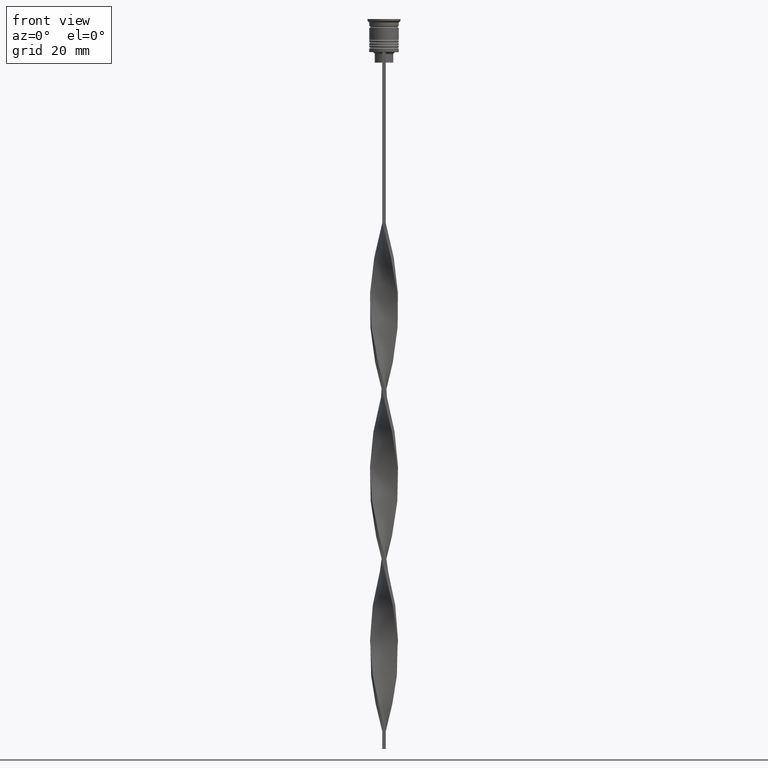
[diagram: clean part render]
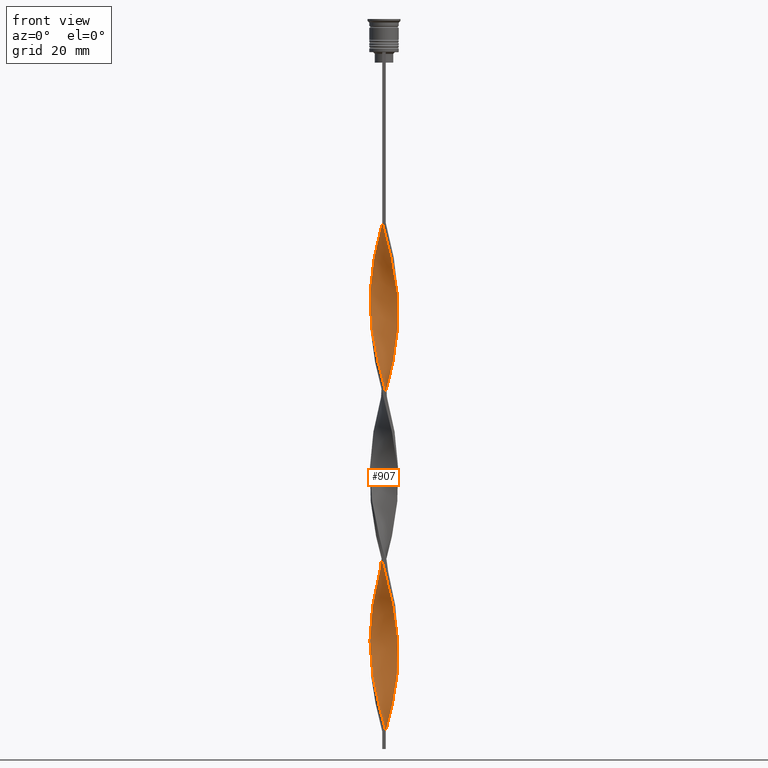
[diagram: same view with one face highlighted and labeled with its STEP entity id]
A machine part, front view. The second image highlights one B-rep face of the part: STEP entity #907.
In plain terms, the highlighted face is a freeform B-spline surface patch.
Its self-contained STEP definition (entity closure, byte-faithful):
#2 = CARTESIAN_POINT ( 'NONE',  ( -2.630408706874892921, -3.077414741952791744, -191.6176470588235077 ) ) ;
#12 = CARTESIAN_POINT ( 'NONE',  ( 3.710471077655235206, -1.575564781874740694, -175.8725490196078454 ) ) ;
#13 = CARTESIAN_POINT ( 'NONE',  ( 3.927262761293754956, 0.9829235285346250572, -88.55882352941175384 ) ) ;
#26 = CARTESIAN_POINT ( 'NONE',  ( -3.151094474987766514, 2.541679576361500992, -122.9117647058823621 ) ) ;
#27 = CARTESIAN_POINT ( 'NONE',  ( -0.1293454150318809337, -4.046331823121015248, -157.2647058823529278 ) ) ;
#34 = CARTESIAN_POINT ( 'NONE',  ( -3.306990529297890724, 2.335239837431193788, -168.7156862745097783 ) ) ;
#45 = CARTESIAN_POINT ( 'NONE',  ( -0.5000000000000000000, -4.000000000000000000, -155.8333333333333144 ) ) ;
#46 = CARTESIAN_POINT ( 'NONE',  ( 3.803522343308519016, 1.335371777428621565, -187.3235294117646959 ) ) ;
#56 = CARTESIAN_POINT ( 'NONE',  ( -1.582314657248345080, 3.726367102775659301, -160.1274509803921831 ) ) ;
#68 = CARTESIAN_POINT ( 'NONE',  ( -3.710471077655234762, 1.575564781874742026, -127.2058823529411740 ) ) ;
#69 = CARTESIAN_POINT ( 'NONE',  ( -0.5000000000000000000, 4.000000000000000000, -58.50000000000000000 ) ) ;
#86 = CARTESIAN_POINT ( 'NONE',  ( -1.582314657248345080, 3.726367102775659745, -62.79411764705881893 ) ) ;
#101 = CARTESIAN_POINT ( 'NONE',  ( 2.530837219374230340, 3.137652461479778943, -195.9117647058823479 ) ) ;
#124 = CARTESIAN_POINT ( 'NONE',  ( -3.306990529297891168, 2.335239837431193788, -71.38235294117646390 ) ) ;
#140 = CARTESIAN_POINT ( 'NONE',  ( 3.151094474987767402, 2.541679576361500104, -140.0882352941176237 ) ) ;
#158 = CARTESIAN_POINT ( 'NONE',  ( 4.029070884911789996, 0.1287936502943096417, -130.0686274509803866 ) ) ;
#183 = CARTESIAN_POINT ( 'NONE',  ( 2.821583537095226468, -2.903135856687523830, -117.1862745098039369 ) ) ;
#189 = CARTESIAN_POINT ( 'NONE',  ( 0.4999999999999997780, -1.333333333333333481, -204.5000000000000000 ) ) ;
#192 = CARTESIAN_POINT ( 'NONE',  ( -3.936802525448487522, -0.8669405260007247982, -84.26470588235294201 ) ) ;
#197 = CARTESIAN_POINT ( 'NONE',  ( 3.984134067727318040, -0.6137391387019228706, -127.2058823529411740 ) ) ;
#209 = CARTESIAN_POINT ( 'NONE',  ( -2.020147525076906980, -3.508352239459040067, -97.14705882352940591 ) ) ;
#217 = CARTESIAN_POINT ( 'NONE',  ( 3.357783987531980152, -2.230535068783684682, -75.67647058823528994 ) ) ;
#219 = CARTESIAN_POINT ( 'NONE',  ( 3.151094474987767402, -2.541679576361500104, -74.24509803921567652 ) ) ;
#224 = CARTESIAN_POINT ( 'NONE',  ( -4.041005374160881125, 0.2445547488692185190, -177.3039215686274304 ) ) ;
#231 = CARTESIAN_POINT ( 'NONE',  ( 2.821583537095226468, -2.903135856687523830, -117.1862745098039227 ) ) ;
#243 = CARTESIAN_POINT ( 'NONE',  ( 3.936802525448486634, -0.8669405260007252423, -81.40196078431371518 ) ) ;
#250 = CARTESIAN_POINT ( 'NONE',  ( -1.582314657248345080, 3.726367102775659301, -62.79411764705881893 ) ) ;
#251 = CARTESIAN_POINT ( 'NONE',  ( -2.240090901653235100, 3.372169066272035387, -162.9901960784313815 ) ) ;
#260 = CARTESIAN_POINT ( 'NONE',  ( 3.357783987531980152, -2.230535068783684682, -75.67647058823528994 ) ) ;
#263 = CARTESIAN_POINT ( 'NONE',  ( -2.325278115975899951, -3.292883490705914795, -193.0490196078431211 ) ) ;
#276 = CARTESIAN_POINT ( 'NONE',  ( -3.803522343308518572, -1.335371777428622897, -138.6568627450980387 ) ) ;
#277 = CARTESIAN_POINT ( 'NONE',  ( -3.357783987531981040, 2.230535068783683350, -124.3431372549019471 ) ) ;
#284 = CARTESIAN_POINT ( 'NONE',  ( 2.630408706874892033, 3.077414741952792188, -142.9509803921568789 ) ) ;
#304 = CARTESIAN_POINT ( 'NONE',  ( -0.8706545849681190941, -3.953668176878986085, -154.4019607843137294 ) ) ;
#305 = CARTESIAN_POINT ( 'NONE',  ( 3.984134067727318040, 0.6137391387019219824, -87.12745098039215463 ) ) ;
#312 = CARTESIAN_POINT ( 'NONE',  ( -0.2435115214243305515, -4.023767157643892034, -201.6372549019607732 ) ) ;
#320 = CARTESIAN_POINT ( 'NONE',  ( 2.821583537095227356, 2.903135856687522942, -97.14705882352940591 ) ) ;
#321 = CARTESIAN_POINT ( 'NONE',  ( 1.341092642212326380, -3.819817009255230822, -162.9901960784313815 ) ) ;
#330 = CARTESIAN_POINT ( 'NONE',  ( -0.6163684578805426195, -4.001202492166770597, -200.2058823529411882 ) ) ;
#340 = CARTESIAN_POINT ( 'NONE',  ( 1.582314657248345968, 3.726367102775659301, -102.8725490196078312 ) ) ;
#341 = CARTESIAN_POINT ( 'NONE',  ( 2.020147525076906536, -3.508352239459040067, -165.8529411764705799 ) ) ;
#350 = CARTESIAN_POINT ( 'NONE',  ( -4.017136395662697979, -0.5021420494578370253, -180.1666666666666288 ) ) ;
#362 = CARTESIAN_POINT ( 'NONE',  ( -1.911202779450789979, -3.549268084523846678, -150.1078431372548891 ) ) ;
#363 = CARTESIAN_POINT ( 'NONE',  ( 3.493386227310586456, 2.011529931876905319, -190.1862745098039227 ) ) ;
#372 = CARTESIAN_POINT ( 'NONE',  ( -2.240090901653234656, 3.372169066272035387, -162.9901960784313530 ) ) ;
#381 = CARTESIAN_POINT ( 'NONE',  ( 2.325278115975899507, -3.292883490705915239, -167.2843137254901933 ) ) ;
#396 = CARTESIAN_POINT ( 'NONE',  ( 0.6163684578805417313, -4.001202492166771485, -160.1274509803922115 ) ) ;
#411 = CARTESIAN_POINT ( 'NONE',  ( -0.6163684578805426195, -4.001202492166771485, -102.8725490196078312 ) ) ;
#433 = CARTESIAN_POINT ( 'NONE',  ( 2.821583537095227356, 2.903135856687522942, -194.4803921568627629 ) ) ;
#434 = CARTESIAN_POINT ( 'NONE',  ( 3.856468655234276621, 1.231739002543614125, -134.3627450980391984 ) ) ;
#469 = CARTESIAN_POINT ( 'NONE',  ( 0.6163684578805430636, 4.001202492166771485, -151.5392156862744741 ) ) ;
#486 = EDGE_CURVE ( 'NONE', #3319, #3688, #3806, .T. ) ;
#491 = CARTESIAN_POINT ( 'NONE',  ( 3.064287033196558596, -2.619187847059357921, -118.6176470588235219 ) ) ;
#494 = CARTESIAN_POINT ( 'NONE',  ( 0.6163684578805417313, -4.001202492166770597, -62.79411764705881893 ) ) ;
#518 = CARTESIAN_POINT ( 'NONE',  ( -3.927262761293754956, 0.9829235285346253903, -174.4411764705882320 ) ) ;
#523 = CARTESIAN_POINT ( 'NONE',  ( -0.2435115214243305515, -4.023767157643892034, -104.3039215686274446 ) ) ;
#535 = CARTESIAN_POINT ( 'NONE',  ( -1.680620083644616569, 3.664084624357134334, -115.7549019607843093 ) ) ;
#540 = CARTESIAN_POINT ( 'NONE',  ( -0.5000000000000000000, -4.000000000000000000, -58.50000000000000000 ) ) ;
#544 = CARTESIAN_POINT ( 'NONE',  ( -3.564473500076193790, -1.919390561205868817, -88.55882352941175384 ) ) ;
#556 = CARTESIAN_POINT ( 'NONE',  ( 1.341092642212326380, -3.819817009255230822, -65.65686274509803866 ) ) ;
#561 =( BOUNDED_SURFACE ( )  B_SPLINE_SURFACE ( 1, 2, ( 
 ( #3484, #2621, #3218, #3257, #1462, #556, #1733, #3551, #2665, #1489, #2008, #219, #260, #866, #2380, #885, #243, #3817, #2966, #3176, #305, #13, #3506, #1425, #3566, #2316, #1402, #594, #1442, #1172, #2072, #3781, #1113, #2053, #3797, #2643, #841, #3240, #3196, #2028, #535, #1707, #1147, #2338, #3533, #2947, #277, #3845, #3022, #2396, #3041, #2989, #1267, #1800, #691, #3004, #2089, #1572, #943, #2129, #2165, #1854, #3606, #2144, #618, #1285, #2453, #2474, #3278, #27, #3662, #396, #3584, #321, #3639, #341, #381, #960, #1831, #1521, #2699, #3314, #2437, #3331, #2739, #1504, #1250, #3059, #651, #670, #46, #1232, #363, #2682, #3352, #1207, #101, #1541, #2721, #1558, #3297, #926, #2114 ),
 ( #69, #3624, #636, #86, #983, #2757, #1870, #1815, #2420, #124, #3421, #764, #1647, #1943, #2543, #1069, #3110, #2860, #727, #1886, #1629, #3720, #3697, #3073, #2182, #748, #708, #2221, #779, #1963, #1362, #411, #1668, #3736, #1594, #3406, #2250, #1909, #3438, #2840, #2779, #183, #491, #1307, #2818, #2489, #1927, #3680, #197, #1016, #158, #2560, #1343, #434, #1377, #1035, #3125, #140, #3150, #2526, #1001, #2237, #2506, #3368, #2199, #469, #3384, #3095, #1613, #2800, #1325, #3462, #1899, #251, #2042, #2367, #1409, #1992, #597, #577, #1738, #518, #2888, #224, #3802, #889, #2301, #3488, #2625, #2035, #1133, #845, #3223, #2931, #263, #3820, #2345, #870, #2093, #1543, #2147, #1291, #3354 ) ),
 .UNSPECIFIED., .F., .F., .F. ) 
 B_SPLINE_SURFACE_WITH_KNOTS ( ( 2, 2 ),
 ( 3, 2, 2, 2, 2, 2, 2, 2, 2, 2, 2, 2, 2, 2, 2, 2, 2, 2, 2, 2, 2, 2, 2, 2, 2, 2, 2, 2, 2, 2, 2, 2, 2, 2, 2, 2, 2, 2, 2, 2, 2, 2, 2, 2, 2, 2, 2, 2, 2, 2, 2, 3 ),
 ( 0.000000000000000000, 1.000000000000000000 ),
 ( 0.000000000000000000, 0.01470588235294117627, 0.02941176470588235253, 0.04411764705882353227, 0.05882352941176470507, 0.07352941176470588480, 0.08823529411764706454, 0.1029411764705882304, 0.1176470588235294101, 0.1323529411764705899, 0.1470588235294117696, 0.1617647058823529493, 0.1764705882352941291, 0.1911764705882352811, 0.2058823529411764608, 0.2205882352941176405, 0.2352941176470588203, 0.2500000000000000000, 0.2647058823529411797, 0.2794117647058823595, 0.2941176470588235392, 0.3088235294117647189, 0.3235294117647058987, 0.3382352941176470784, 0.3529411764705882582, 0.3676470588235294379, 0.3823529411764705621, 0.3970588235294117418, 0.4117647058823529216, 0.4264705882352941013, 0.4411764705882352811, 0.4558823529411764608, 0.4705882352941176405, 0.4852941176470588203, 0.5000000000000000000, 0.5147058823529411242, 0.5294117647058823595, 0.5441176470588234837, 0.5588235294117647189, 0.5735294117647058432, 0.5882352941176470784, 0.6029411764705882026, 0.6176470588235294379, 0.6323529411764705621, 0.6470588235294117974, 0.6617647058823529216, 0.6764705882352941568, 0.6911764705882352811, 0.7058823529411765163, 0.7205882352941176405, 0.7352941176470588758, 0.7500000000000000000 ),
 .UNSPECIFIED. ) 
 GEOMETRIC_REPRESENTATION_ITEM ( )  RATIONAL_B_SPLINE_SURFACE ( (
 ( 1.000000000000000000, 0.9957341762950344677, 1.000000000000000000, 0.9957341762950344677, 1.000000000000000000, 0.9957341762950344677, 1.000000000000000000, 0.9957341762950344677, 1.000000000000000000, 0.9957341762950344677, 1.000000000000000000, 0.9957341762950344677, 1.000000000000000000, 0.9957341762950344677, 1.000000000000000000, 0.9957341762950344677, 1.000000000000000000, 0.9957341762950344677, 1.000000000000000000, 0.9957341762950344677, 1.000000000000000000, 0.9957341762950344677, 1.000000000000000000, 0.9957341762950344677, 1.000000000000000000, 0.9957341762950344677, 1.000000000000000000, 0.9957341762950344677, 1.000000000000000000, 0.9957341762950344677, 1.000000000000000000, 0.9957341762950344677, 1.000000000000000000, 0.9957341762950344677, 1.000000000000000000, 0.9957341762950344677, 1.000000000000000000, 0.9957341762950344677, 1.000000000000000000, 0.9957341762950344677, 1.000000000000000000, 0.9957341762950344677, 1.000000000000000000, 0.9957341762950344677, 1.000000000000000000, 0.9957341762950344677, 1.000000000000000000, 0.9957341762950344677, 1.000000000000000000, 0.9957341762950344677, 1.000000000000000000, 0.9957341762950344677, 1.000000000000000000, 0.9957341762950344677, 1.000000000000000000, 0.9957341762950344677, 1.000000000000000000, 0.9957341762950344677, 1.000000000000000000, 0.9957341762950344677, 1.000000000000000000, 0.9957341762950344677, 1.000000000000000000, 0.9957341762950344677, 1.000000000000000000, 0.9957341762950344677, 1.000000000000000000, 0.9957341762950344677, 1.000000000000000000, 0.9957341762950344677, 1.000000000000000000, 0.9957341762950344677, 1.000000000000000000, 0.9957341762950344677, 1.000000000000000000, 0.9957341762950344677, 1.000000000000000000, 0.9957341762950344677, 1.000000000000000000, 0.9957341762950344677, 1.000000000000000000, 0.9957341762950344677, 1.000000000000000000, 0.9957341762950344677, 1.000000000000000000, 0.9957341762950344677, 1.000000000000000000, 0.9957341762950344677, 1.000000000000000000, 0.9957341762950344677, 1.000000000000000000, 0.9957341762950344677, 1.000000000000000000, 0.9957341762950344677, 1.000000000000000000, 0.9957341762950344677, 1.000000000000000000, 0.9957341762950344677, 1.000000000000000000, 0.9957341762950344677, 1.000000000000000000, 0.9957341762950344677, 1.000000000000000000),
 ( 1.000000000000000000, 0.9957341762950344677, 1.000000000000000000, 0.9957341762950344677, 1.000000000000000000, 0.9957341762950344677, 1.000000000000000000, 0.9957341762950344677, 1.000000000000000000, 0.9957341762950344677, 1.000000000000000000, 0.9957341762950344677, 1.000000000000000000, 0.9957341762950344677, 1.000000000000000000, 0.9957341762950344677, 1.000000000000000000, 0.9957341762950344677, 1.000000000000000000, 0.9957341762950344677, 1.000000000000000000, 0.9957341762950344677, 1.000000000000000000, 0.9957341762950344677, 1.000000000000000000, 0.9957341762950344677, 1.000000000000000000, 0.9957341762950344677, 1.000000000000000000, 0.9957341762950344677, 1.000000000000000000, 0.9957341762950344677, 1.000000000000000000, 0.9957341762950344677, 1.000000000000000000, 0.9957341762950344677, 1.000000000000000000, 0.9957341762950344677, 1.000000000000000000, 0.9957341762950344677, 1.000000000000000000, 0.9957341762950344677, 1.000000000000000000, 0.9957341762950344677, 1.000000000000000000, 0.9957341762950344677, 1.000000000000000000, 0.9957341762950344677, 1.000000000000000000, 0.9957341762950344677, 1.000000000000000000, 0.9957341762950344677, 1.000000000000000000, 0.9957341762950344677, 1.000000000000000000, 0.9957341762950344677, 1.000000000000000000, 0.9957341762950344677, 1.000000000000000000, 0.9957341762950344677, 1.000000000000000000, 0.9957341762950344677, 1.000000000000000000, 0.9957341762950344677, 1.000000000000000000, 0.9957341762950344677, 1.000000000000000000, 0.9957341762950344677, 1.000000000000000000, 0.9957341762950344677, 1.000000000000000000, 0.9957341762950344677, 1.000000000000000000, 0.9957341762950344677, 1.000000000000000000, 0.9957341762950344677, 1.000000000000000000, 0.9957341762950344677, 1.000000000000000000, 0.9957341762950344677, 1.000000000000000000, 0.9957341762950344677, 1.000000000000000000, 0.9957341762950344677, 1.000000000000000000, 0.9957341762950344677, 1.000000000000000000, 0.9957341762950344677, 1.000000000000000000, 0.9957341762950344677, 1.000000000000000000, 0.9957341762950344677, 1.000000000000000000, 0.9957341762950344677, 1.000000000000000000, 0.9957341762950344677, 1.000000000000000000, 0.9957341762950344677, 1.000000000000000000, 0.9957341762950344677, 1.000000000000000000, 0.9957341762950344677, 1.000000000000000000) ) ) 
 REPRESENTATION_ITEM ( '' )  SURFACE ( )  );
#564 = CARTESIAN_POINT ( 'NONE',  ( -3.064287033196558596, 2.619187847059357921, -69.95098039215686470 ) ) ;
#573 = CARTESIAN_POINT ( 'NONE',  ( -0.6163684578805417313, 4.001202492166770597, -111.4607843137254974 ) ) ;
#577 = CARTESIAN_POINT ( 'NONE',  ( -3.679781925323283076, 1.687820026322619293, -171.5784313725490335 ) ) ;
#583 = CARTESIAN_POINT ( 'NONE',  ( -3.936802525448487522, -0.8669405260007247982, -181.5980392156862706 ) ) ;
#593 = CARTESIAN_POINT ( 'NONE',  ( 2.530837219374230340, 3.137652461479778943, -98.57843137254901933 ) ) ;
#594 = CARTESIAN_POINT ( 'NONE',  ( 2.821583537095227356, 2.903135856687522942, -97.14705882352939170 ) ) ;
#597 = CARTESIAN_POINT ( 'NONE',  ( -3.493386227310586012, 2.011529931876905763, -170.1470588235293917 ) ) ;
#601 = CARTESIAN_POINT ( 'NONE',  ( -2.020147525076906980, -3.508352239459040067, -194.4803921568627629 ) ) ;
#617 = CARTESIAN_POINT ( 'NONE',  ( -2.020147525076906092, 3.508352239459040067, -117.1862745098039227 ) ) ;
#618 = CARTESIAN_POINT ( 'NONE',  ( -1.911202779450789979, -3.549268084523846678, -150.1078431372548891 ) ) ;
#624 = CARTESIAN_POINT ( 'NONE',  ( 1.680620083644617901, 3.664084624357133446, -147.2450980392156907 ) ) ;
#635 = CARTESIAN_POINT ( 'NONE',  ( 1.226484621108232531, 3.840017639827321805, -104.3039215686274446 ) ) ;
#636 = CARTESIAN_POINT ( 'NONE',  ( -1.226484621108232309, 3.840017639827321805, -61.36274509803921262 ) ) ;
#642 = CARTESIAN_POINT ( 'NONE',  ( -0.5000000000000000000, 4.000000000000000000, -155.8333333333333144 ) ) ;
#650 = CARTESIAN_POINT ( 'NONE',  ( -3.936802525448487522, 0.8669405260007250202, -130.0686274509803866 ) ) ;
#651 = CARTESIAN_POINT ( 'NONE',  ( 3.984134067727318040, 0.6137391387019219824, -184.4607843137254690 ) ) ;
#658 = CARTESIAN_POINT ( 'NONE',  ( -3.856468655234277065, -1.231739002543613681, -183.0294117647059124 ) ) ;
#670 = CARTESIAN_POINT ( 'NONE',  ( 3.927262761293754956, 0.9829235285346250572, -185.8921568627451109 ) ) ;
#691 = CARTESIAN_POINT ( 'NONE',  ( -3.984134067727318040, -0.6137391387019215383, -135.7941176470588118 ) ) ;
#708 = CARTESIAN_POINT ( 'NONE',  ( -2.325278115975899951, -3.292883490705914795, -95.71568627450979250 ) ) ;
#727 = CARTESIAN_POINT ( 'NONE',  ( -3.936802525448487522, -0.8669405260007247982, -84.26470588235294201 ) ) ;
#748 = CARTESIAN_POINT ( 'NONE',  ( -2.630408706874893365, -3.077414741952792188, -94.28431372549020750 ) ) ;
#764 = CARTESIAN_POINT ( 'NONE',  ( -3.679781925323283076, 1.687820026322619293, -74.24509803921567652 ) ) ;
#775 = CARTESIAN_POINT ( 'NONE',  ( -1.911202779450789535, 3.549268084523846678, -64.22549019607842524 ) ) ;
#779 = CARTESIAN_POINT ( 'NONE',  ( -1.680620083644616125, -3.664084624357134778, -98.57843137254901933 ) ) ;
#783 = CARTESIAN_POINT ( 'NONE',  ( 3.856468655234277065, -1.231739002543613237, -79.97058823529411598 ) ) ;
#813 = CARTESIAN_POINT ( 'NONE',  ( 0.1293454150318815721, -4.046331823121016136, -105.7352941176470722 ) ) ;
#829 = CARTESIAN_POINT ( 'NONE',  ( -3.803522343308519016, 1.335371777428622009, -75.67647058823528994 ) ) ;
#840 = CARTESIAN_POINT ( 'NONE',  ( -0.1293454150318809337, -4.046331823121015248, -59.93137254901961342 ) ) ;
#841 = CARTESIAN_POINT ( 'NONE',  ( -0.2435115214243295800, 4.023767157643892034, -110.0294117647058698 ) ) ;
#845 = CARTESIAN_POINT ( 'NONE',  ( -3.151094474987767402, -2.541679576361500548, -188.7549019607843093 ) ) ;
#865 = CARTESIAN_POINT ( 'NONE',  ( 0.1293454150318806006, 4.046331823121015248, -108.5980392156862706 ) ) ;
#866 = CARTESIAN_POINT ( 'NONE',  ( 3.564473500076194235, -1.919390561205869261, -77.10784313725490335 ) ) ;
#870 = CARTESIAN_POINT ( 'NONE',  ( -1.341092642212326824, -3.819817009255229934, -197.3431372549019898 ) ) ;
#875 = CARTESIAN_POINT ( 'NONE',  ( -2.821583537095227356, 2.903135856687522942, -165.8529411764705799 ) ) ;
#884 = CARTESIAN_POINT ( 'NONE',  ( 0.6163684578805417313, -4.001202492166770597, -160.1274509803921831 ) ) ;
#885 = CARTESIAN_POINT ( 'NONE',  ( 3.856468655234276621, -1.231739002543613237, -79.97058823529411598 ) ) ;
#889 = CARTESIAN_POINT ( 'NONE',  ( -4.017136395662697979, -0.5021420494578370253, -180.1666666666666288 ) ) ;
#893 = CARTESIAN_POINT ( 'NONE',  ( 3.564473500076194679, 1.919390561205867707, -137.2254901960784537 ) ) ;
#902 = CARTESIAN_POINT ( 'NONE',  ( -2.890751590931329496, 2.809547159157145924, -121.4803921568627345 ) ) ;
#907 = ADVANCED_FACE ( 'NONE', ( #2585 ), #561, .T. ) ;
#910 = CARTESIAN_POINT ( 'NONE',  ( 0.1293454150318815721, -4.046331823121016136, -203.0686274509803582 ) ) ;
#925 = CARTESIAN_POINT ( 'NONE',  ( -4.029070884911789996, 0.1287936502943111128, -132.9313725490196134 ) ) ;
#926 = CARTESIAN_POINT ( 'NONE',  ( 0.8706545849681186500, 3.953668176878985641, -203.0686274509803582 ) ) ;
#933 = CARTESIAN_POINT ( 'NONE',  ( -0.8706545849681190941, 3.953668176878985197, -157.2647058823529278 ) ) ;
#942 = CARTESIAN_POINT ( 'NONE',  ( -3.679781925323283076, -1.687820026322619293, -140.0882352941176237 ) ) ;
#943 = CARTESIAN_POINT ( 'NONE',  ( -3.493386227310586900, -2.011529931876904875, -141.5196078431372371 ) ) ;
#948 = CARTESIAN_POINT ( 'NONE',  ( 2.020147525076907424, 3.508352239459039623, -145.8137254901960489 ) ) ;
#959 = CARTESIAN_POINT ( 'NONE',  ( 3.064287033196559040, 2.619187847059357477, -193.0490196078431211 ) ) ;
#960 = CARTESIAN_POINT ( 'NONE',  ( 2.630408706874893365, -3.077414741952792188, -168.7156862745097783 ) ) ;
#983 = CARTESIAN_POINT ( 'NONE',  ( -1.911202779450789535, 3.549268084523846678, -64.22549019607842524 ) ) ;
#1001 = CARTESIAN_POINT ( 'NONE',  ( 2.325278115975899063, 3.292883490705915683, -144.3823529411764639 ) ) ;
#1015 = CARTESIAN_POINT ( 'NONE',  ( 3.493386227310586456, 2.011529931876905319, -190.1862745098039227 ) ) ;
#1016 = CARTESIAN_POINT ( 'NONE',  ( 4.041005374160881125, -0.2445547488692170757, -128.6372549019607447 ) ) ;
#1035 = CARTESIAN_POINT ( 'NONE',  ( 3.564473500076195123, 1.919390561205867707, -137.2254901960784821 ) ) ;
#1060 = EDGE_LOOP ( 'NONE', ( #1272, #3435, #1720, #2118 ) ) ;
#1069 = CARTESIAN_POINT ( 'NONE',  ( -4.041005374160881125, 0.2445547488692185190, -79.97058823529411598 ) ) ;
#1082 = CARTESIAN_POINT ( 'NONE',  ( -3.710471077655235206, -1.575564781874741138, -87.12745098039215463 ) ) ;
#1088 = CARTESIAN_POINT ( 'NONE',  ( 3.984134067727318040, 0.6137391387019219824, -87.12745098039215463 ) ) ;
#1104 = CARTESIAN_POINT ( 'NONE',  ( -3.493386227310586012, 2.011529931876905763, -72.81372549019607732 ) ) ;
#1112 = CARTESIAN_POINT ( 'NONE',  ( 3.493386227310586456, 2.011529931876905319, -92.85294117647057988 ) ) ;
#1113 = CARTESIAN_POINT ( 'NONE',  ( 1.226484621108232531, 3.840017639827321805, -104.3039215686274446 ) ) ;
#1133 = CARTESIAN_POINT ( 'NONE',  ( -3.357783987531980152, -2.230535068783684238, -187.3235294117646959 ) ) ;
#1137 = CARTESIAN_POINT ( 'NONE',  ( -3.679781925323283076, 1.687820026322619293, -74.24509803921567652 ) ) ;
#1147 = CARTESIAN_POINT ( 'NONE',  ( -2.325278115975899507, 3.292883490705915239, -118.6176470588235219 ) ) ;
#1157 = CARTESIAN_POINT ( 'NONE',  ( -3.803522343308519016, 1.335371777428622009, -173.0098039215686185 ) ) ;
#1171 = CARTESIAN_POINT ( 'NONE',  ( 2.630408706874892921, -3.077414741952791744, -168.7156862745097783 ) ) ;
#1172 = CARTESIAN_POINT ( 'NONE',  ( 2.240090901653235544, 3.372169066272034499, -100.0098039215686327 ) ) ;
#1179 = CARTESIAN_POINT ( 'NONE',  ( 4.029070884911789996, 0.1287936502943096417, -130.0686274509803866 ) ) ;
#1188 = CARTESIAN_POINT ( 'NONE',  ( 4.041005374160881125, 0.2445547488692189353, -183.0294117647059124 ) ) ;
#1196 = CARTESIAN_POINT ( 'NONE',  ( -3.984134067727318040, 0.6137391387019215383, -175.8725490196078454 ) ) ;
#1206 = CARTESIAN_POINT ( 'NONE',  ( -0.1293454150318809337, -4.046331823121015248, -157.2647058823529278 ) ) ;
#1207 = CARTESIAN_POINT ( 'NONE',  ( 2.821583537095227356, 2.903135856687522942, -194.4803921568627914 ) ) ;
#1231 = CARTESIAN_POINT ( 'NONE',  ( 3.151094474987766958, -2.541679576361500104, -171.5784313725490620 ) ) ;
#1232 = CARTESIAN_POINT ( 'NONE',  ( 3.679781925323283076, 1.687820026322619738, -188.7549019607843093 ) ) ;
#1238 = CARTESIAN_POINT ( 'NONE',  ( 3.493386227310585568, -2.011529931876906208, -121.4803921568627345 ) ) ;
#1249 = CARTESIAN_POINT ( 'NONE',  ( -1.341092642212325936, 3.819817009255230822, -114.3235294117646959 ) ) ;
#1250 = CARTESIAN_POINT ( 'NONE',  ( 4.029070884911789996, -0.1287936502943097528, -181.5980392156862706 ) ) ;
#1267 = CARTESIAN_POINT ( 'NONE',  ( -4.029070884911789996, 0.1287936502943111128, -132.9313725490196134 ) ) ;
#1272 = ORIENTED_EDGE ( 'NONE', *, *, #486, .T. ) ;
#1285 = CARTESIAN_POINT ( 'NONE',  ( -1.582314657248346412, -3.726367102775658857, -151.5392156862744741 ) ) ;
#1291 = CARTESIAN_POINT ( 'NONE',  ( 0.1293454150318815721, -4.046331823121016136, -203.0686274509803582 ) ) ;
#1306 = CARTESIAN_POINT ( 'NONE',  ( 3.927262761293755400, 0.9829235285346250572, -185.8921568627451109 ) ) ;
#1307 = CARTESIAN_POINT ( 'NONE',  ( 3.306990529297891612, -2.335239837431193344, -120.0490196078431211 ) ) ;
#1325 = CARTESIAN_POINT ( 'NONE',  ( -1.226484621108232309, 3.840017639827321805, -158.6960784313725412 ) ) ;
#1343 = CARTESIAN_POINT ( 'NONE',  ( 3.936802525448487522, 0.8669405260007234659, -132.9313725490196134 ) ) ;
#1362 = CARTESIAN_POINT ( 'NONE',  ( -0.9787305500464337227, -3.910509750710999821, -101.4411764705882320 ) ) ;
#1365 = CARTESIAN_POINT ( 'NONE',  ( 0.9787305500464337227, -3.910509750710999821, -64.22549019607842524 ) ) ;
#1372 = CARTESIAN_POINT ( 'NONE',  ( -0.5000000000000000000, 4.000000000000000000, -58.50000000000000000 ) ) ;
#1377 = CARTESIAN_POINT ( 'NONE',  ( 3.710471077655235206, 1.575564781874740694, -135.7941176470588118 ) ) ;
#1387 = CARTESIAN_POINT ( 'NONE',  ( -1.680620083644616125, -3.664084624357134778, -98.57843137254901933 ) ) ;
#1390 = VERTEX_POINT ( 'NONE', #2617 ) ;
#1400 = CARTESIAN_POINT ( 'NONE',  ( 3.679781925323283076, 1.687820026322619738, -91.42156862745098067 ) ) ;
#1402 = CARTESIAN_POINT ( 'NONE',  ( 3.064287033196559040, 2.619187847059357477, -95.71568627450979250 ) ) ;
#1409 = CARTESIAN_POINT ( 'NONE',  ( -3.064287033196558596, 2.619187847059357921, -167.2843137254901933 ) ) ;
#1416 = CARTESIAN_POINT ( 'NONE',  ( 3.064287033196558596, -2.619187847059357921, -118.6176470588235219 ) ) ;
#1425 = CARTESIAN_POINT ( 'NONE',  ( 3.679781925323283076, 1.687820026322619738, -91.42156862745096646 ) ) ;
#1441 = CARTESIAN_POINT ( 'NONE',  ( 1.680620083644616125, -3.664084624357134778, -67.08823529411763786 ) ) ;
#1442 = CARTESIAN_POINT ( 'NONE',  ( 2.530837219374230340, 3.137652461479778943, -98.57843137254901933 ) ) ;
#1461 = CARTESIAN_POINT ( 'NONE',  ( -3.493386227310586900, -2.011529931876904875, -141.5196078431372371 ) ) ;
#1462 = CARTESIAN_POINT ( 'NONE',  ( 0.9787305500464337227, -3.910509750710999821, -64.22549019607842524 ) ) ;
#1471 = DIRECTION ( 'NONE',  ( 0.000000000000000000, 1.000000000000000000, 0.000000000000000000 ) ) ;
#1473 = CARTESIAN_POINT ( 'NONE',  ( 3.856468655234277065, 1.231739002543614125, -134.3627450980391984 ) ) ;
#1478 =( BOUNDED_CURVE ( )  B_SPLINE_CURVE ( 2, ( #1372, #2015, #3141, #250, #775, #3513, #1980, #2246, #564, #3769, #1104, #1137, #829, #2572, #2306, #3433, #1662, #3807, #192, #3747, #1082, #544, #2263, #3452, #3163, #1678, #2870, #209, #1387, #3203, #2288, #3474, #523, #813, #2325, #2041, #1996, #3184, #3227, #1695, #2893, #231, #1416, #2593, #1238, #3824, #1838, #3287, #2386, #2690, #1179, #3540, #2426, #1473, #1806, #893, #2372, #3321, #1527, #284, #3558, #948, #624, #3032, #2655, #2953, #2408, #3594, #642, #933, #2710, #56, #2101, #372, #2080, #875, #2994, #34, #2671, #2060, #1157, #3247, #1196, #3612, #2134, #350, #583, #658, #1547, #1762, #3572, #2350, #3264, #2, #1822, #601, #3010, #1786, #2976, #330, #312, #910, #1494 ),
 .UNSPECIFIED., .F., .T. ) 
 B_SPLINE_CURVE_WITH_KNOTS ( ( 3, 2, 2, 2, 2, 2, 2, 2, 2, 2, 2, 2, 2, 2, 2, 2, 2, 2, 2, 2, 2, 2, 2, 2, 2, 2, 2, 2, 2, 2, 2, 2, 2, 2, 2, 2, 2, 2, 2, 2, 2, 2, 2, 2, 2, 2, 2, 2, 2, 2, 2, 3 ),
 ( 0.000000000000000000, 0.01470588235294117453, 0.02941176470588234906, 0.04411764705882353227, 0.05882352941176469813, 0.07352941176470588480, 0.08823529411764706454, 0.1029411764705882443, 0.1176470588235293963, 0.1323529411764705899, 0.1470588235294117696, 0.1617647058823529493, 0.1764705882352941291, 0.1911764705882352811, 0.2058823529411764885, 0.2205882352941176405, 0.2352941176470587925, 0.2500000000000000000, 0.2647058823529411797, 0.2794117647058823595, 0.2941176470588235392, 0.3088235294117647189, 0.3235294117647058987, 0.3382352941176470229, 0.3529411764705882582, 0.3676470588235294379, 0.3823529411764705621, 0.3970588235294117418, 0.4117647058823529771, 0.4264705882352941013, 0.4411764705882352811, 0.4558823529411764608, 0.4705882352941175850, 0.4852941176470588203, 0.5000000000000000000, 0.5147058823529411242, 0.5294117647058823595, 0.5441176470588234837, 0.5588235294117647189, 0.5735294117647058432, 0.5882352941176470784, 0.6029411764705882026, 0.6176470588235294379, 0.6323529411764705621, 0.6470588235294117974, 0.6617647058823529216, 0.6764705882352940458, 0.6911764705882351700, 0.7058823529411765163, 0.7205882352941176405, 0.7352941176470588758, 0.7500000000000000000 ),
 .UNSPECIFIED. ) 
 CURVE ( )  GEOMETRIC_REPRESENTATION_ITEM ( )  RATIONAL_B_SPLINE_CURVE ( ( 1.000000000000000000, 0.9957341762950344677, 1.000000000000000000, 0.9957341762950344677, 1.000000000000000000, 0.9957341762950344677, 1.000000000000000000, 0.9957341762950344677, 1.000000000000000000, 0.9957341762950344677, 1.000000000000000000, 0.9957341762950344677, 1.000000000000000000, 0.9957341762950344677, 1.000000000000000000, 0.9957341762950344677, 1.000000000000000000, 0.9957341762950344677, 1.000000000000000000, 0.9957341762950344677, 1.000000000000000000, 0.9957341762950344677, 1.000000000000000000, 0.9957341762950344677, 1.000000000000000000, 0.9957341762950344677, 1.000000000000000000, 0.9957341762950344677, 1.000000000000000000, 0.9957341762950344677, 1.000000000000000000, 0.9957341762950344677, 1.000000000000000000, 0.9957341762950344677, 1.000000000000000000, 0.9957341762950344677, 1.000000000000000000, 0.9957341762950344677, 1.000000000000000000, 0.9957341762950344677, 1.000000000000000000, 0.9957341762950344677, 1.000000000000000000, 0.9957341762950344677, 1.000000000000000000, 0.9957341762950344677, 1.000000000000000000, 0.9957341762950344677, 1.000000000000000000, 0.9957341762950344677, 1.000000000000000000, 0.9957341762950344677, 1.000000000000000000, 0.9957341762950344677, 1.000000000000000000, 0.9957341762950344677, 1.000000000000000000, 0.9957341762950344677, 1.000000000000000000, 0.9957341762950344677, 1.000000000000000000, 0.9957341762950344677, 1.000000000000000000, 0.9957341762950344677, 1.000000000000000000, 0.9957341762950344677, 1.000000000000000000, 0.9957341762950344677, 1.000000000000000000, 0.9957341762950344677, 1.000000000000000000, 0.9957341762950344677, 1.000000000000000000, 0.9957341762950344677, 1.000000000000000000, 0.9957341762950344677, 1.000000000000000000, 0.9957341762950344677, 1.000000000000000000, 0.9957341762950344677, 1.000000000000000000, 0.9957341762950344677, 1.000000000000000000, 0.9957341762950344677, 1.000000000000000000, 0.9957341762950344677, 1.000000000000000000, 0.9957341762950344677, 1.000000000000000000, 0.9957341762950344677, 1.000000000000000000, 0.9957341762950344677, 1.000000000000000000, 0.9957341762950344677, 1.000000000000000000, 0.9957341762950344677, 1.000000000000000000, 0.9957341762950344677, 1.000000000000000000, 0.9957341762950344677, 1.000000000000000000, 0.9957341762950344677, 1.000000000000000000 ) ) 
 REPRESENTATION_ITEM ( '' )  );
#1488 = CARTESIAN_POINT ( 'NONE',  ( -4.041005374160881125, -0.2445547488692193516, -134.3627450980391984 ) ) ;
#1489 = CARTESIAN_POINT ( 'NONE',  ( 2.630408706874893365, -3.077414741952792188, -71.38235294117646390 ) ) ;
#1494 = CARTESIAN_POINT ( 'NONE',  ( 0.4999999999999994449, -4.000000000000000000, -204.5000000000000000 ) ) ;
#1503 = CARTESIAN_POINT ( 'NONE',  ( -3.064287033196558152, -2.619187847059358365, -144.3823529411764639 ) ) ;
#1504 = CARTESIAN_POINT ( 'NONE',  ( 4.017136395662697979, -0.5021420494578374694, -180.1666666666666288 ) ) ;
#1520 = CARTESIAN_POINT ( 'NONE',  ( -3.564473500076193790, 1.919390561205869039, -125.7745098039216032 ) ) ;
#1521 = CARTESIAN_POINT ( 'NONE',  ( 3.151094474987767402, -2.541679576361500104, -171.5784313725490335 ) ) ;
#1527 = CARTESIAN_POINT ( 'NONE',  ( 2.890751590931330828, 2.809547159157144591, -141.5196078431372371 ) ) ;
#1540 = CARTESIAN_POINT ( 'NONE',  ( -3.306990529297890280, -2.335239837431195120, -142.9509803921568789 ) ) ;
#1541 = CARTESIAN_POINT ( 'NONE',  ( 2.240090901653235544, 3.372169066272034499, -197.3431372549019898 ) ) ;
#1543 = CARTESIAN_POINT ( 'NONE',  ( -0.6163684578805426195, -4.001202492166771485, -200.2058823529411598 ) ) ;
#1547 = CARTESIAN_POINT ( 'NONE',  ( -3.710471077655235206, -1.575564781874741138, -184.4607843137254690 ) ) ;
#1558 = CARTESIAN_POINT ( 'NONE',  ( 1.582314657248345968, 3.726367102775659745, -200.2058823529411598 ) ) ;
#1572 = CARTESIAN_POINT ( 'NONE',  ( -3.679781925323283076, -1.687820026322619293, -140.0882352941176237 ) ) ;
#1594 = CARTESIAN_POINT ( 'NONE',  ( 0.4999999999999994449, -4.000000000000000000, -107.1666666666666572 ) ) ;
#1613 = CARTESIAN_POINT ( 'NONE',  ( -0.5000000000000000000, 4.000000000000000000, -155.8333333333333144 ) ) ;
#1629 = CARTESIAN_POINT ( 'NONE',  ( -3.710471077655235206, -1.575564781874741138, -87.12745098039215463 ) ) ;
#1647 = CARTESIAN_POINT ( 'NONE',  ( -3.803522343308519016, 1.335371777428622009, -75.67647058823528994 ) ) ;
#1662 = CARTESIAN_POINT ( 'NONE',  ( -4.029070884911789108, -0.1287936502943091699, -81.40196078431371518 ) ) ;
#1663 = EDGE_CURVE ( 'NONE', #3688, #1390, #1478, .T. ) ;
#1668 = CARTESIAN_POINT ( 'NONE',  ( -0.2435115214243305515, -4.023767157643892034, -104.3039215686274446 ) ) ;
#1671 = CARTESIAN_POINT ( 'NONE',  ( 4.029070884911789996, -0.1287936502943097528, -84.26470588235294201 ) ) ;
#1678 = CARTESIAN_POINT ( 'NONE',  ( -2.630408706874892921, -3.077414741952791744, -94.28431372549020750 ) ) ;
#1695 = CARTESIAN_POINT ( 'NONE',  ( 2.240090901653234212, -3.372169066272035387, -114.3235294117646959 ) ) ;
#1707 = CARTESIAN_POINT ( 'NONE',  ( -2.020147525076905648, 3.508352239459040067, -117.1862745098039369 ) ) ;
#1720 = ORIENTED_EDGE ( 'NONE', *, *, #3140, .F. ) ;
#1733 = CARTESIAN_POINT ( 'NONE',  ( 1.680620083644616125, -3.664084624357134778, -67.08823529411763786 ) ) ;
#1738 = CARTESIAN_POINT ( 'NONE',  ( -3.803522343308519016, 1.335371777428622009, -173.0098039215686185 ) ) ;
#1745 =( BOUNDED_CURVE ( )  B_SPLINE_CURVE ( 2, ( #2564, #840, #2026, #494, #1365, #2547, #1441, #3217, #2884, #2926, #2584, #2620, #217, #2254, #3441, #783, #1970, #3154, #1671, #2863, #1088, #2275, #3466, #1400, #1112, #3565, #3277, #320, #593, #2988, #3532, #340, #635, #2946, #3003, #865, #2052, #573, #3238, #1249, #1751, #617, #1773, #2965, #902, #26, #3583, #1520, #68, #2681, #650, #2088, #925, #1488, #2664, #1799, #276, #942, #1461, #1540, #1503, #3313, #2642, #1830, #362, #2113, #3843, #304, #45, #1206, #2395, #884, #3296, #1814, #3021, #2698, #2720, #1171, #2360, #1231, #2419, #3605, #12, #3550, #2379, #2128, #2071, #1188, #3256, #1306, #3094, #1853, #1015, #3623, #959, #433, #2473, #1869, #2164, #3679, #2799, #1885, #3661 ),
 .UNSPECIFIED., .F., .T. ) 
 B_SPLINE_CURVE_WITH_KNOTS ( ( 3, 2, 2, 2, 2, 2, 2, 2, 2, 2, 2, 2, 2, 2, 2, 2, 2, 2, 2, 2, 2, 2, 2, 2, 2, 2, 2, 2, 2, 2, 2, 2, 2, 2, 2, 2, 2, 2, 2, 2, 2, 2, 2, 2, 2, 2, 2, 2, 2, 2, 2, 3 ),
 ( 0.000000000000000000, 0.01470588235294117453, 0.02941176470588234906, 0.04411764705882353227, 0.05882352941176469813, 0.07352941176470588480, 0.08823529411764706454, 0.1029411764705882443, 0.1176470588235293963, 0.1323529411764705899, 0.1470588235294117696, 0.1617647058823529493, 0.1764705882352941291, 0.1911764705882352811, 0.2058823529411764885, 0.2205882352941176405, 0.2352941176470587925, 0.2500000000000000000, 0.2647058823529411797, 0.2794117647058823595, 0.2941176470588235392, 0.3088235294117647189, 0.3235294117647058987, 0.3382352941176470229, 0.3529411764705882582, 0.3676470588235294379, 0.3823529411764705621, 0.3970588235294117418, 0.4117647058823529771, 0.4264705882352941013, 0.4411764705882352811, 0.4558823529411764608, 0.4705882352941175850, 0.4852941176470588203, 0.5000000000000000000, 0.5147058823529411242, 0.5294117647058823595, 0.5441176470588234837, 0.5588235294117647189, 0.5735294117647058432, 0.5882352941176470784, 0.6029411764705882026, 0.6176470588235294379, 0.6323529411764705621, 0.6470588235294117974, 0.6617647058823529216, 0.6764705882352940458, 0.6911764705882351700, 0.7058823529411765163, 0.7205882352941176405, 0.7352941176470588758, 0.7500000000000000000 ),
 .UNSPECIFIED. ) 
 CURVE ( )  GEOMETRIC_REPRESENTATION_ITEM ( )  RATIONAL_B_SPLINE_CURVE ( ( 1.000000000000000000, 0.9957341762950344677, 1.000000000000000000, 0.9957341762950344677, 1.000000000000000000, 0.9957341762950344677, 1.000000000000000000, 0.9957341762950344677, 1.000000000000000000, 0.9957341762950344677, 1.000000000000000000, 0.9957341762950344677, 1.000000000000000000, 0.9957341762950344677, 1.000000000000000000, 0.9957341762950344677, 1.000000000000000000, 0.9957341762950344677, 1.000000000000000000, 0.9957341762950344677, 1.000000000000000000, 0.9957341762950344677, 1.000000000000000000, 0.9957341762950344677, 1.000000000000000000, 0.9957341762950344677, 1.000000000000000000, 0.9957341762950344677, 1.000000000000000000, 0.9957341762950344677, 1.000000000000000000, 0.9957341762950344677, 1.000000000000000000, 0.9957341762950344677, 1.000000000000000000, 0.9957341762950344677, 1.000000000000000000, 0.9957341762950344677, 1.000000000000000000, 0.9957341762950344677, 1.000000000000000000, 0.9957341762950344677, 1.000000000000000000, 0.9957341762950344677, 1.000000000000000000, 0.9957341762950344677, 1.000000000000000000, 0.9957341762950344677, 1.000000000000000000, 0.9957341762950344677, 1.000000000000000000, 0.9957341762950344677, 1.000000000000000000, 0.9957341762950344677, 1.000000000000000000, 0.9957341762950344677, 1.000000000000000000, 0.9957341762950344677, 1.000000000000000000, 0.9957341762950344677, 1.000000000000000000, 0.9957341762950344677, 1.000000000000000000, 0.9957341762950344677, 1.000000000000000000, 0.9957341762950344677, 1.000000000000000000, 0.9957341762950344677, 1.000000000000000000, 0.9957341762950344677, 1.000000000000000000, 0.9957341762950344677, 1.000000000000000000, 0.9957341762950344677, 1.000000000000000000, 0.9957341762950344677, 1.000000000000000000, 0.9957341762950344677, 1.000000000000000000, 0.9957341762950344677, 1.000000000000000000, 0.9957341762950344677, 1.000000000000000000, 0.9957341762950344677, 1.000000000000000000, 0.9957341762950344677, 1.000000000000000000, 0.9957341762950344677, 1.000000000000000000, 0.9957341762950344677, 1.000000000000000000, 0.9957341762950344677, 1.000000000000000000, 0.9957341762950344677, 1.000000000000000000, 0.9957341762950344677, 1.000000000000000000, 0.9957341762950344677, 1.000000000000000000, 0.9957341762950344677, 1.000000000000000000, 0.9957341762950344677, 1.000000000000000000 ) ) 
 REPRESENTATION_ITEM ( '' )  );
#1751 = CARTESIAN_POINT ( 'NONE',  ( -1.680620083644616569, 3.664084624357134334, -115.7549019607843093 ) ) ;
#1762 = CARTESIAN_POINT ( 'NONE',  ( -3.564473500076193790, -1.919390561205868817, -185.8921568627451109 ) ) ;
#1773 = CARTESIAN_POINT ( 'NONE',  ( -2.325278115975899507, 3.292883490705915239, -118.6176470588235219 ) ) ;
#1786 = CARTESIAN_POINT ( 'NONE',  ( -1.341092642212326824, -3.819817009255229934, -197.3431372549019613 ) ) ;
#1799 = CARTESIAN_POINT ( 'NONE',  ( -3.927262761293755400, -0.9829235285346239470, -137.2254901960784537 ) ) ;
#1800 = CARTESIAN_POINT ( 'NONE',  ( -4.041005374160881125, -0.2445547488692193794, -134.3627450980391984 ) ) ;
#1806 = CARTESIAN_POINT ( 'NONE',  ( 3.710471077655235206, 1.575564781874740694, -135.7941176470588118 ) ) ;
#1814 = CARTESIAN_POINT ( 'NONE',  ( 1.341092642212326380, -3.819817009255230822, -162.9901960784313530 ) ) ;
#1815 = CARTESIAN_POINT ( 'NONE',  ( -2.821583537095227356, 2.903135856687522942, -68.51960784313723707 ) ) ;
#1822 = CARTESIAN_POINT ( 'NONE',  ( -2.325278115975899951, -3.292883490705914795, -193.0490196078431211 ) ) ;
#1830 = CARTESIAN_POINT ( 'NONE',  ( -2.240090901653234212, -3.372169066272035831, -148.6764705882353326 ) ) ;
#1831 = CARTESIAN_POINT ( 'NONE',  ( 2.890751590931329940, -2.809547159157145479, -170.1470588235293917 ) ) ;
#1838 = CARTESIAN_POINT ( 'NONE',  ( 3.803522343308519016, -1.335371777428620899, -124.3431372549019471 ) ) ;
#1853 = CARTESIAN_POINT ( 'NONE',  ( 3.679781925323283076, 1.687820026322619738, -188.7549019607843093 ) ) ;
#1854 = CARTESIAN_POINT ( 'NONE',  ( -2.821583537095227356, -2.903135856687522498, -145.8137254901960489 ) ) ;
#1869 = CARTESIAN_POINT ( 'NONE',  ( 2.240090901653235100, 3.372169066272034499, -197.3431372549019613 ) ) ;
#1870 = CARTESIAN_POINT ( 'NONE',  ( -2.530837219374230340, 3.137652461479778943, -67.08823529411763786 ) ) ;
#1885 = CARTESIAN_POINT ( 'NONE',  ( 0.8706545849681186500, 3.953668176878986085, -203.0686274509803582 ) ) ;
#1886 = CARTESIAN_POINT ( 'NONE',  ( -3.856468655234276621, -1.231739002543613681, -85.69607843137254122 ) ) ;
#1899 = CARTESIAN_POINT ( 'NONE',  ( -1.911202779450789535, 3.549268084523846678, -161.5588235294117680 ) ) ;
#1909 = CARTESIAN_POINT ( 'NONE',  ( 1.582314657248345080, -3.726367102775659745, -111.4607843137254974 ) ) ;
#1927 = CARTESIAN_POINT ( 'NONE',  ( 3.803522343308519016, -1.335371777428620899, -124.3431372549019471 ) ) ;
#1943 = CARTESIAN_POINT ( 'NONE',  ( -3.927262761293754956, 0.9829235285346253903, -77.10784313725490335 ) ) ;
#1963 = CARTESIAN_POINT ( 'NONE',  ( -1.341092642212326824, -3.819817009255229934, -100.0098039215686327 ) ) ;
#1970 = CARTESIAN_POINT ( 'NONE',  ( 3.936802525448486634, -0.8669405260007252423, -81.40196078431371518 ) ) ;
#1975 = CARTESIAN_POINT ( 'NONE',  ( 0.4999999999999994449, -4.000000000000000000, -204.5000000000000000 ) ) ;
#1980 = CARTESIAN_POINT ( 'NONE',  ( -2.530837219374230340, 3.137652461479778943, -67.08823529411763786 ) ) ;
#1983 = VERTEX_POINT ( 'NONE', #3112 ) ;
#1992 = CARTESIAN_POINT ( 'NONE',  ( -3.306990529297891168, 2.335239837431193788, -168.7156862745097783 ) ) ;
#1996 = CARTESIAN_POINT ( 'NONE',  ( 1.226484621108231421, -3.840017639827321805, -110.0294117647058698 ) ) ;
#2008 = CARTESIAN_POINT ( 'NONE',  ( 2.890751590931329940, -2.809547159157145479, -72.81372549019607732 ) ) ;
#2015 = CARTESIAN_POINT ( 'NONE',  ( -0.8706545849681190941, 3.953668176878985197, -59.93137254901961342 ) ) ;
#2026 = CARTESIAN_POINT ( 'NONE',  ( 0.2435115214243304405, -4.023767157643892034, -61.36274509803921262 ) ) ;
#2028 = CARTESIAN_POINT ( 'NONE',  ( -1.341092642212325936, 3.819817009255230822, -114.3235294117646959 ) ) ;
#2035 = CARTESIAN_POINT ( 'NONE',  ( -3.564473500076194235, -1.919390561205868817, -185.8921568627451109 ) ) ;
#2041 = CARTESIAN_POINT ( 'NONE',  ( 0.8706545849681194271, -3.953668176878985197, -108.5980392156862706 ) ) ;
#2042 = CARTESIAN_POINT ( 'NONE',  ( -2.530837219374230340, 3.137652461479778943, -164.4215686274509665 ) ) ;
#2052 = CARTESIAN_POINT ( 'NONE',  ( -0.2435115214243295800, 4.023767157643892034, -110.0294117647058698 ) ) ;
#2053 = CARTESIAN_POINT ( 'NONE',  ( 0.8706545849681186500, 3.953668176878985641, -105.7352941176470722 ) ) ;
#2060 = CARTESIAN_POINT ( 'NONE',  ( -3.679781925323283076, 1.687820026322619293, -171.5784313725490620 ) ) ;
#2071 = CARTESIAN_POINT ( 'NONE',  ( 4.029070884911789996, -0.1287936502943097528, -181.5980392156862706 ) ) ;
#2072 = CARTESIAN_POINT ( 'NONE',  ( 1.911202779450789535, 3.549268084523846678, -101.4411764705882320 ) ) ;
#2080 = CARTESIAN_POINT ( 'NONE',  ( -2.530837219374230340, 3.137652461479778943, -164.4215686274509665 ) ) ;
#2088 = CARTESIAN_POINT ( 'NONE',  ( -4.017136395662697979, 0.5021420494578380245, -131.5000000000000000 ) ) ;
#2089 = CARTESIAN_POINT ( 'NONE',  ( -3.803522343308518572, -1.335371777428622897, -138.6568627450980387 ) ) ;
#2093 = CARTESIAN_POINT ( 'NONE',  ( -0.9787305500464337227, -3.910509750710999821, -198.7745098039215463 ) ) ;
#2101 = CARTESIAN_POINT ( 'NONE',  ( -1.911202779450789535, 3.549268084523846678, -161.5588235294117680 ) ) ;
#2113 = CARTESIAN_POINT ( 'NONE',  ( -1.582314657248346412, -3.726367102775658413, -151.5392156862744741 ) ) ;
#2114 = CARTESIAN_POINT ( 'NONE',  ( 0.5000000000000005551, 4.000000000000000000, -204.5000000000000000 ) ) ;
#2118 = ORIENTED_EDGE ( 'NONE', *, *, #3838, .F. ) ;
#2128 = CARTESIAN_POINT ( 'NONE',  ( 4.017136395662697979, -0.5021420494578374694, -180.1666666666666288 ) ) ;
#2129 = CARTESIAN_POINT ( 'NONE',  ( -3.306990529297890724, -2.335239837431195120, -142.9509803921568789 ) ) ;
#2134 = CARTESIAN_POINT ( 'NONE',  ( -4.029070884911789108, -0.1287936502943091699, -178.7352941176470438 ) ) ;
#2144 = CARTESIAN_POINT ( 'NONE',  ( -2.240090901653234656, -3.372169066272035831, -148.6764705882353326 ) ) ;
#2147 = CARTESIAN_POINT ( 'NONE',  ( -0.2435115214243305515, -4.023767157643892034, -201.6372549019607732 ) ) ;
#2164 = CARTESIAN_POINT ( 'NONE',  ( 1.911202779450789535, 3.549268084523846678, -198.7745098039215463 ) ) ;
#2165 = CARTESIAN_POINT ( 'NONE',  ( -3.064287033196558152, -2.619187847059358365, -144.3823529411764639 ) ) ;
#2182 = CARTESIAN_POINT ( 'NONE',  ( -2.890751590931330384, -2.809547159157145035, -92.85294117647057988 ) ) ;
#2199 = CARTESIAN_POINT ( 'NONE',  ( 0.9787305500464340557, 3.910509750710999821, -150.1078431372548891 ) ) ;
#2221 = CARTESIAN_POINT ( 'NONE',  ( -2.020147525076906536, -3.508352239459040067, -97.14705882352939170 ) ) ;
#2237 = CARTESIAN_POINT ( 'NONE',  ( 2.020147525076906980, 3.508352239459039623, -145.8137254901960489 ) ) ;
#2246 = CARTESIAN_POINT ( 'NONE',  ( -2.821583537095227356, 2.903135856687522942, -68.51960784313725128 ) ) ;
#2250 = CARTESIAN_POINT ( 'NONE',  ( 1.226484621108231421, -3.840017639827321805, -110.0294117647058698 ) ) ;
#2254 = CARTESIAN_POINT ( 'NONE',  ( 3.564473500076193790, -1.919390561205869261, -77.10784313725490335 ) ) ;
#2263 = CARTESIAN_POINT ( 'NONE',  ( -3.357783987531980152, -2.230535068783684238, -89.99019607843136725 ) ) ;
#2275 = CARTESIAN_POINT ( 'NONE',  ( 3.927262761293755400, 0.9829235285346250572, -88.55882352941175384 ) ) ;
#2288 = CARTESIAN_POINT ( 'NONE',  ( -0.9787305500464337227, -3.910509750710999821, -101.4411764705882320 ) ) ;
#2301 = CARTESIAN_POINT ( 'NONE',  ( -3.936802525448487522, -0.8669405260007247982, -181.5980392156862706 ) ) ;
#2306 = CARTESIAN_POINT ( 'NONE',  ( -3.984134067727318040, 0.6137391387019215383, -78.53921568627450256 ) ) ;
#2316 = CARTESIAN_POINT ( 'NONE',  ( 3.306990529297891168, 2.335239837431193788, -94.28431372549020750 ) ) ;
#2325 = CARTESIAN_POINT ( 'NONE',  ( 0.4999999999999994449, -4.000000000000000000, -107.1666666666666572 ) ) ;
#2338 = CARTESIAN_POINT ( 'NONE',  ( -2.630408706874893809, 3.077414741952791744, -120.0490196078431211 ) ) ;
#2345 = CARTESIAN_POINT ( 'NONE',  ( -1.680620083644616125, -3.664084624357134778, -195.9117647058823479 ) ) ;
#2350 = CARTESIAN_POINT ( 'NONE',  ( -3.151094474987766958, -2.541679576361500548, -188.7549019607843093 ) ) ;
#2360 = CARTESIAN_POINT ( 'NONE',  ( 2.890751590931329940, -2.809547159157145479, -170.1470588235293917 ) ) ;
#2367 = CARTESIAN_POINT ( 'NONE',  ( -2.821583537095227356, 2.903135856687522942, -165.8529411764705799 ) ) ;
#2372 = CARTESIAN_POINT ( 'NONE',  ( 3.357783987531979708, 2.230535068783685571, -138.6568627450980387 ) ) ;
#2379 = CARTESIAN_POINT ( 'NONE',  ( 3.936802525448486634, -0.8669405260007252423, -178.7352941176470438 ) ) ;
#2380 = CARTESIAN_POINT ( 'NONE',  ( 3.710471077655235206, -1.575564781874740694, -78.53921568627450256 ) ) ;
#2386 = CARTESIAN_POINT ( 'NONE',  ( 3.984134067727318040, -0.6137391387019228706, -127.2058823529411740 ) ) ;
#2395 = CARTESIAN_POINT ( 'NONE',  ( 0.2435115214243304405, -4.023767157643892034, -158.6960784313725412 ) ) ;
#2396 = CARTESIAN_POINT ( 'NONE',  ( -3.856468655234277509, 1.231739002543611905, -128.6372549019607447 ) ) ;
#2408 = CARTESIAN_POINT ( 'NONE',  ( 0.2435115214243293580, 4.023767157643892034, -152.9705882352941160 ) ) ;
#2419 = CARTESIAN_POINT ( 'NONE',  ( 3.357783987531980152, -2.230535068783684682, -173.0098039215686185 ) ) ;
#2420 = CARTESIAN_POINT ( 'NONE',  ( -3.064287033196558596, 2.619187847059357921, -69.95098039215686470 ) ) ;
#2426 = CARTESIAN_POINT ( 'NONE',  ( 3.936802525448487522, 0.8669405260007234659, -132.9313725490196134 ) ) ;
#2437 = CARTESIAN_POINT ( 'NONE',  ( 3.710471077655235206, -1.575564781874740694, -175.8725490196078454 ) ) ;
#2453 = CARTESIAN_POINT ( 'NONE',  ( -1.226484621108231199, -3.840017639827321805, -152.9705882352941160 ) ) ;
#2473 = CARTESIAN_POINT ( 'NONE',  ( 2.530837219374230340, 3.137652461479778943, -195.9117647058823479 ) ) ;
#2474 = CARTESIAN_POINT ( 'NONE',  ( -0.8706545849681190941, -3.953668176878985641, -154.4019607843137294 ) ) ;
#2489 = CARTESIAN_POINT ( 'NONE',  ( 3.679781925323282632, -1.687820026322619960, -122.9117647058823479 ) ) ;
#2506 = CARTESIAN_POINT ( 'NONE',  ( 1.680620083644617901, 3.664084624357133446, -147.2450980392156907 ) ) ;
#2526 = CARTESIAN_POINT ( 'NONE',  ( 2.630408706874892033, 3.077414741952792632, -142.9509803921568789 ) ) ;
#2543 = CARTESIAN_POINT ( 'NONE',  ( -3.984134067727318040, 0.6137391387019215383, -78.53921568627450256 ) ) ;
#2547 = CARTESIAN_POINT ( 'NONE',  ( 1.341092642212326380, -3.819817009255230822, -65.65686274509803866 ) ) ;
#2560 = CARTESIAN_POINT ( 'NONE',  ( 4.017136395662697979, 0.5021420494578364702, -131.5000000000000000 ) ) ;
#2564 = CARTESIAN_POINT ( 'NONE',  ( -0.5000000000000000000, -4.000000000000000000, -58.50000000000000000 ) ) ;
#2572 = CARTESIAN_POINT ( 'NONE',  ( -3.927262761293755400, 0.9829235285346255013, -77.10784313725490335 ) ) ;
#2584 = CARTESIAN_POINT ( 'NONE',  ( 2.890751590931329940, -2.809547159157145479, -72.81372549019607732 ) ) ;
#2585 = FACE_OUTER_BOUND ( 'NONE', #1060, .T. ) ;
#2593 = CARTESIAN_POINT ( 'NONE',  ( 3.306990529297891168, -2.335239837431193344, -120.0490196078431353 ) ) ;
#2617 = CARTESIAN_POINT ( 'NONE',  ( 0.4999999999999994449, -4.000000000000000000, -204.5000000000000000 ) ) ;
#2620 = CARTESIAN_POINT ( 'NONE',  ( 3.151094474987766958, -2.541679576361500104, -74.24509803921567652 ) ) ;
#2621 = CARTESIAN_POINT ( 'NONE',  ( -0.1293454150318809337, -4.046331823121015248, -59.93137254901961342 ) ) ;
#2625 = CARTESIAN_POINT ( 'NONE',  ( -3.710471077655235206, -1.575564781874741138, -184.4607843137254690 ) ) ;
#2642 = CARTESIAN_POINT ( 'NONE',  ( -2.530837219374231672, -3.137652461479777610, -147.2450980392156907 ) ) ;
#2643 = CARTESIAN_POINT ( 'NONE',  ( 0.1293454150318806006, 4.046331823121015248, -108.5980392156862706 ) ) ;
#2655 = CARTESIAN_POINT ( 'NONE',  ( 0.9787305500464340557, 3.910509750710999821, -150.1078431372548891 ) ) ;
#2664 = CARTESIAN_POINT ( 'NONE',  ( -3.984134067727318040, -0.6137391387019215383, -135.7941176470588118 ) ) ;
#2665 = CARTESIAN_POINT ( 'NONE',  ( 2.325278115975899507, -3.292883490705915239, -69.95098039215686470 ) ) ;
#2671 = CARTESIAN_POINT ( 'NONE',  ( -3.493386227310586012, 2.011529931876905763, -170.1470588235293917 ) ) ;
#2681 = CARTESIAN_POINT ( 'NONE',  ( -3.856468655234277954, 1.231739002543611905, -128.6372549019607732 ) ) ;
#2682 = CARTESIAN_POINT ( 'NONE',  ( 3.306990529297891168, 2.335239837431193788, -191.6176470588235077 ) ) ;
#2690 = CARTESIAN_POINT ( 'NONE',  ( 4.041005374160881125, -0.2445547488692170757, -128.6372549019607732 ) ) ;
#2698 = CARTESIAN_POINT ( 'NONE',  ( 2.020147525076906980, -3.508352239459040067, -165.8529411764705799 ) ) ;
#2699 = CARTESIAN_POINT ( 'NONE',  ( 3.357783987531980152, -2.230535068783684682, -173.0098039215686185 ) ) ;
#2710 = CARTESIAN_POINT ( 'NONE',  ( -1.226484621108232309, 3.840017639827321805, -158.6960784313725412 ) ) ;
#2720 = CARTESIAN_POINT ( 'NONE',  ( 2.325278115975899507, -3.292883490705915239, -167.2843137254901933 ) ) ;
#2721 = CARTESIAN_POINT ( 'NONE',  ( 1.911202779450789535, 3.549268084523846678, -198.7745098039215463 ) ) ;
#2739 = CARTESIAN_POINT ( 'NONE',  ( 3.936802525448486634, -0.8669405260007252423, -178.7352941176470438 ) ) ;
#2757 = CARTESIAN_POINT ( 'NONE',  ( -2.240090901653235100, 3.372169066272035387, -65.65686274509803866 ) ) ;
#2779 = CARTESIAN_POINT ( 'NONE',  ( 2.530837219374230784, -3.137652461479778498, -115.7549019607843093 ) ) ;
#2799 = CARTESIAN_POINT ( 'NONE',  ( 1.226484621108232531, 3.840017639827321805, -201.6372549019607732 ) ) ;
#2800 = CARTESIAN_POINT ( 'NONE',  ( -0.8706545849681190941, 3.953668176878984752, -157.2647058823529278 ) ) ;
#2818 = CARTESIAN_POINT ( 'NONE',  ( 3.493386227310585568, -2.011529931876906208, -121.4803921568627345 ) ) ;
#2840 = CARTESIAN_POINT ( 'NONE',  ( 2.240090901653234656, -3.372169066272035387, -114.3235294117646959 ) ) ;
#2860 = CARTESIAN_POINT ( 'NONE',  ( -4.017136395662697979, -0.5021420494578370253, -82.83333333333332860 ) ) ;
#2863 = CARTESIAN_POINT ( 'NONE',  ( 4.041005374160881125, 0.2445547488692189353, -85.69607843137254122 ) ) ;
#2869 = CARTESIAN_POINT ( 'NONE',  ( -0.5000000000000000000, -4.000000000000000000, -58.50000000000000000 ) ) ;
#2870 = CARTESIAN_POINT ( 'NONE',  ( -2.325278115975899951, -3.292883490705914795, -95.71568627450979250 ) ) ;
#2884 = CARTESIAN_POINT ( 'NONE',  ( 2.325278115975899507, -3.292883490705915239, -69.95098039215686470 ) ) ;
#2888 = CARTESIAN_POINT ( 'NONE',  ( -3.984134067727318040, 0.6137391387019215383, -175.8725490196078454 ) ) ;
#2893 = CARTESIAN_POINT ( 'NONE',  ( 2.530837219374230784, -3.137652461479778498, -115.7549019607843093 ) ) ;
#2926 = CARTESIAN_POINT ( 'NONE',  ( 2.630408706874892921, -3.077414741952791744, -71.38235294117646390 ) ) ;
#2931 = CARTESIAN_POINT ( 'NONE',  ( -2.630408706874893365, -3.077414741952792188, -191.6176470588235077 ) ) ;
#2946 = CARTESIAN_POINT ( 'NONE',  ( 0.8706545849681186500, 3.953668176878986085, -105.7352941176470722 ) ) ;
#2947 = CARTESIAN_POINT ( 'NONE',  ( -3.151094474987766958, 2.541679576361500992, -122.9117647058823479 ) ) ;
#2953 = CARTESIAN_POINT ( 'NONE',  ( 0.6163684578805429526, 4.001202492166770597, -151.5392156862744741 ) ) ;
#2965 = CARTESIAN_POINT ( 'NONE',  ( -2.630408706874893365, 3.077414741952791299, -120.0490196078431353 ) ) ;
#2966 = CARTESIAN_POINT ( 'NONE',  ( 4.029070884911789996, -0.1287936502943097528, -84.26470588235294201 ) ) ;
#2976 = CARTESIAN_POINT ( 'NONE',  ( -0.9787305500464337227, -3.910509750710999821, -198.7745098039215463 ) ) ;
#2988 = CARTESIAN_POINT ( 'NONE',  ( 2.240090901653235100, 3.372169066272034499, -100.0098039215686327 ) ) ;
#2989 = CARTESIAN_POINT ( 'NONE',  ( -4.017136395662697979, 0.5021420494578380245, -131.5000000000000000 ) ) ;
#2994 = CARTESIAN_POINT ( 'NONE',  ( -3.064287033196558596, 2.619187847059357921, -167.2843137254901933 ) ) ;
#3003 = CARTESIAN_POINT ( 'NONE',  ( 0.5000000000000005551, 4.000000000000000000, -107.1666666666666572 ) ) ;
#3004 = CARTESIAN_POINT ( 'NONE',  ( -3.927262761293754956, -0.9829235285346239470, -137.2254901960784821 ) ) ;
#3010 = CARTESIAN_POINT ( 'NONE',  ( -1.680620083644616125, -3.664084624357134778, -195.9117647058823479 ) ) ;
#3021 = CARTESIAN_POINT ( 'NONE',  ( 1.680620083644616125, -3.664084624357134778, -164.4215686274509665 ) ) ;
#3022 = CARTESIAN_POINT ( 'NONE',  ( -3.710471077655234762, 1.575564781874742026, -127.2058823529411740 ) ) ;
#3032 = CARTESIAN_POINT ( 'NONE',  ( 1.341092642212325714, 3.819817009255231266, -148.6764705882353326 ) ) ;
#3041 = CARTESIAN_POINT ( 'NONE',  ( -3.936802525448487522, 0.8669405260007250202, -130.0686274509803866 ) ) ;
#3059 = CARTESIAN_POINT ( 'NONE',  ( 4.041005374160881125, 0.2445547488692189630, -183.0294117647059124 ) ) ;
#3073 = CARTESIAN_POINT ( 'NONE',  ( -3.151094474987767402, -2.541679576361500548, -91.42156862745096646 ) ) ;
#3094 = CARTESIAN_POINT ( 'NONE',  ( 3.803522343308519016, 1.335371777428621565, -187.3235294117646959 ) ) ;
#3095 = CARTESIAN_POINT ( 'NONE',  ( -0.1293454150318810725, 4.046331823121016136, -154.4019607843137294 ) ) ;
#3110 = CARTESIAN_POINT ( 'NONE',  ( -4.029070884911789108, -0.1287936502943091699, -81.40196078431371518 ) ) ;
#3112 = CARTESIAN_POINT ( 'NONE',  ( 0.5000000000000005551, 4.000000000000000000, -204.5000000000000000 ) ) ;
#3125 = CARTESIAN_POINT ( 'NONE',  ( 3.357783987531979708, 2.230535068783685571, -138.6568627450980387 ) ) ;
#3140 = EDGE_CURVE ( 'NONE', #1983, #1390, #3475, .T. ) ;
#3141 = CARTESIAN_POINT ( 'NONE',  ( -1.226484621108232309, 3.840017639827321805, -61.36274509803921262 ) ) ;
#3150 = CARTESIAN_POINT ( 'NONE',  ( 2.890751590931330828, 2.809547159157144591, -141.5196078431372371 ) ) ;
#3154 = CARTESIAN_POINT ( 'NONE',  ( 4.017136395662697979, -0.5021420494578374694, -82.83333333333332860 ) ) ;
#3163 = CARTESIAN_POINT ( 'NONE',  ( -2.890751590931330384, -2.809547159157145035, -92.85294117647057988 ) ) ;
#3176 = CARTESIAN_POINT ( 'NONE',  ( 4.041005374160881125, 0.2445547488692189630, -85.69607843137254122 ) ) ;
#3184 = CARTESIAN_POINT ( 'NONE',  ( 1.582314657248345080, -3.726367102775659301, -111.4607843137254974 ) ) ;
#3196 = CARTESIAN_POINT ( 'NONE',  ( -0.9787305500464342778, 3.910509750710998933, -112.8921568627450966 ) ) ;
#3203 = CARTESIAN_POINT ( 'NONE',  ( -1.341092642212326824, -3.819817009255229934, -100.0098039215686327 ) ) ;
#3217 = CARTESIAN_POINT ( 'NONE',  ( 2.020147525076906980, -3.508352239459040067, -68.51960784313725128 ) ) ;
#3218 = CARTESIAN_POINT ( 'NONE',  ( 0.2435115214243304405, -4.023767157643892034, -61.36274509803921262 ) ) ;
#3223 = CARTESIAN_POINT ( 'NONE',  ( -2.890751590931330384, -2.809547159157145035, -190.1862745098039227 ) ) ;
#3224 = CARTESIAN_POINT ( 'NONE',  ( 0.5000000000000005551, 4.000000000000000000, -204.5000000000000000 ) ) ;
#3227 = CARTESIAN_POINT ( 'NONE',  ( 1.911202779450790201, -3.549268084523846234, -112.8921568627450966 ) ) ;
#3238 = CARTESIAN_POINT ( 'NONE',  ( -0.9787305500464342778, 3.910509750710998933, -112.8921568627450966 ) ) ;
#3240 = CARTESIAN_POINT ( 'NONE',  ( -0.6163684578805417313, 4.001202492166771485, -111.4607843137254974 ) ) ;
#3244 = CARTESIAN_POINT ( 'NONE',  ( 0.5000000000000002220, 1.333333333333333481, -204.5000000000000000 ) ) ;
#3247 = CARTESIAN_POINT ( 'NONE',  ( -3.927262761293755400, 0.9829235285346255013, -174.4411764705882320 ) ) ;
#3256 = CARTESIAN_POINT ( 'NONE',  ( 3.984134067727318040, 0.6137391387019219824, -184.4607843137254690 ) ) ;
#3257 = CARTESIAN_POINT ( 'NONE',  ( 0.6163684578805417313, -4.001202492166771485, -62.79411764705881893 ) ) ;
#3264 = CARTESIAN_POINT ( 'NONE',  ( -2.890751590931330384, -2.809547159157145035, -190.1862745098039227 ) ) ;
#3277 = CARTESIAN_POINT ( 'NONE',  ( 3.064287033196559040, 2.619187847059357477, -95.71568627450979250 ) ) ;
#3278 = CARTESIAN_POINT ( 'NONE',  ( -0.5000000000000000000, -4.000000000000000000, -155.8333333333333144 ) ) ;
#3287 = CARTESIAN_POINT ( 'NONE',  ( 3.927262761293755400, -0.9829235285346252793, -125.7745098039216032 ) ) ;
#3296 = CARTESIAN_POINT ( 'NONE',  ( 0.9787305500464337227, -3.910509750710999821, -161.5588235294117680 ) ) ;
#3297 = CARTESIAN_POINT ( 'NONE',  ( 1.226484621108232531, 3.840017639827321805, -201.6372549019607732 ) ) ;
#3313 = CARTESIAN_POINT ( 'NONE',  ( -2.821583537095227356, -2.903135856687522498, -145.8137254901960489 ) ) ;
#3314 = CARTESIAN_POINT ( 'NONE',  ( 3.564473500076194235, -1.919390561205869261, -174.4411764705882320 ) ) ;
#3319 = VERTEX_POINT ( 'NONE', #540 ) ;
#3321 = CARTESIAN_POINT ( 'NONE',  ( 3.151094474987766958, 2.541679576361500104, -140.0882352941176237 ) ) ;
#3331 = CARTESIAN_POINT ( 'NONE',  ( 3.856468655234276621, -1.231739002543613237, -177.3039215686274304 ) ) ;
#3352 = CARTESIAN_POINT ( 'NONE',  ( 3.064287033196559040, 2.619187847059357477, -193.0490196078431211 ) ) ;
#3354 = CARTESIAN_POINT ( 'NONE',  ( 0.4999999999999994449, -4.000000000000000000, -204.5000000000000000 ) ) ;
#3368 = CARTESIAN_POINT ( 'NONE',  ( 1.341092642212325714, 3.819817009255231266, -148.6764705882353326 ) ) ;
#3384 = CARTESIAN_POINT ( 'NONE',  ( 0.2435115214243293580, 4.023767157643892034, -152.9705882352941160 ) ) ;
#3406 = CARTESIAN_POINT ( 'NONE',  ( 0.8706545849681194271, -3.953668176878984752, -108.5980392156862706 ) ) ;
#3421 = CARTESIAN_POINT ( 'NONE',  ( -3.493386227310586012, 2.011529931876905763, -72.81372549019607732 ) ) ;
#3433 = CARTESIAN_POINT ( 'NONE',  ( -4.041005374160881125, 0.2445547488692184912, -79.97058823529411598 ) ) ;
#3435 = ORIENTED_EDGE ( 'NONE', *, *, #1663, .T. ) ;
#3438 = CARTESIAN_POINT ( 'NONE',  ( 1.911202779450790201, -3.549268084523846234, -112.8921568627450966 ) ) ;
#3441 = CARTESIAN_POINT ( 'NONE',  ( 3.710471077655235206, -1.575564781874740694, -78.53921568627450256 ) ) ;
#3452 = CARTESIAN_POINT ( 'NONE',  ( -3.151094474987766958, -2.541679576361500548, -91.42156862745098067 ) ) ;
#3462 = CARTESIAN_POINT ( 'NONE',  ( -1.582314657248345080, 3.726367102775659745, -160.1274509803922115 ) ) ;
#3466 = CARTESIAN_POINT ( 'NONE',  ( 3.803522343308519016, 1.335371777428621565, -89.99019607843136725 ) ) ;
#3474 = CARTESIAN_POINT ( 'NONE',  ( -0.6163684578805426195, -4.001202492166770597, -102.8725490196078312 ) ) ;
#3475 = B_SPLINE_CURVE_WITH_KNOTS ( 'NONE', 3,
 ( #3224, #3244, #189, #1975 ),
 .UNSPECIFIED., .F., .F.,
 ( 4, 4 ),
 ( 0.000000000000000000, 1.000000000000000000 ),
 .UNSPECIFIED. ) ;
#3484 = CARTESIAN_POINT ( 'NONE',  ( -0.5000000000000000000, -4.000000000000000000, -58.50000000000000000 ) ) ;
#3488 = CARTESIAN_POINT ( 'NONE',  ( -3.856468655234276621, -1.231739002543613681, -183.0294117647059124 ) ) ;
#3506 = CARTESIAN_POINT ( 'NONE',  ( 3.803522343308519016, 1.335371777428621565, -89.99019607843136725 ) ) ;
#3513 = CARTESIAN_POINT ( 'NONE',  ( -2.240090901653234656, 3.372169066272035387, -65.65686274509803866 ) ) ;
#3514 = VECTOR ( 'NONE', #1471, 1000.000000000000000 ) ;
#3532 = CARTESIAN_POINT ( 'NONE',  ( 1.911202779450789535, 3.549268084523846678, -101.4411764705882320 ) ) ;
#3533 = CARTESIAN_POINT ( 'NONE',  ( -2.890751590931329496, 2.809547159157145924, -121.4803921568627345 ) ) ;
#3540 = CARTESIAN_POINT ( 'NONE',  ( 4.017136395662697979, 0.5021420494578364702, -131.5000000000000000 ) ) ;
#3550 = CARTESIAN_POINT ( 'NONE',  ( 3.856468655234277065, -1.231739002543613237, -177.3039215686274588 ) ) ;
#3551 = CARTESIAN_POINT ( 'NONE',  ( 2.020147525076906536, -3.508352239459040067, -68.51960784313723707 ) ) ;
#3558 = CARTESIAN_POINT ( 'NONE',  ( 2.325278115975899063, 3.292883490705915683, -144.3823529411764639 ) ) ;
#3565 = CARTESIAN_POINT ( 'NONE',  ( 3.306990529297890724, 2.335239837431193788, -94.28431372549020750 ) ) ;
#3566 = CARTESIAN_POINT ( 'NONE',  ( 3.493386227310586456, 2.011529931876905319, -92.85294117647057988 ) ) ;
#3572 = CARTESIAN_POINT ( 'NONE',  ( -3.357783987531980152, -2.230535068783684238, -187.3235294117646959 ) ) ;
#3583 = CARTESIAN_POINT ( 'NONE',  ( -3.357783987531981040, 2.230535068783683350, -124.3431372549019471 ) ) ;
#3584 = CARTESIAN_POINT ( 'NONE',  ( 0.9787305500464337227, -3.910509750710999821, -161.5588235294117680 ) ) ;
#3594 = CARTESIAN_POINT ( 'NONE',  ( -0.1293454150318811002, 4.046331823121016136, -154.4019607843137294 ) ) ;
#3605 = CARTESIAN_POINT ( 'NONE',  ( 3.564473500076193790, -1.919390561205869261, -174.4411764705882320 ) ) ;
#3606 = CARTESIAN_POINT ( 'NONE',  ( -2.530837219374231672, -3.137652461479777610, -147.2450980392156907 ) ) ;
#3612 = CARTESIAN_POINT ( 'NONE',  ( -4.041005374160881125, 0.2445547488692184912, -177.3039215686274588 ) ) ;
#3623 = CARTESIAN_POINT ( 'NONE',  ( 3.306990529297890724, 2.335239837431193788, -191.6176470588235077 ) ) ;
#3624 = CARTESIAN_POINT ( 'NONE',  ( -0.8706545849681190941, 3.953668176878984752, -59.93137254901961342 ) ) ;
#3639 = CARTESIAN_POINT ( 'NONE',  ( 1.680620083644616125, -3.664084624357134778, -164.4215686274509665 ) ) ;
#3661 = CARTESIAN_POINT ( 'NONE',  ( 0.5000000000000005551, 4.000000000000000000, -204.5000000000000000 ) ) ;
#3662 = CARTESIAN_POINT ( 'NONE',  ( 0.2435115214243304405, -4.023767157643892034, -158.6960784313725412 ) ) ;
#3665 = CARTESIAN_POINT ( 'NONE',  ( -0.5000000000000000000, 4.000000000000000000, -58.50000000000000000 ) ) ;
#3679 = CARTESIAN_POINT ( 'NONE',  ( 1.582314657248345968, 3.726367102775659301, -200.2058823529411882 ) ) ;
#3680 = CARTESIAN_POINT ( 'NONE',  ( 3.927262761293754956, -0.9829235285346251683, -125.7745098039216032 ) ) ;
#3688 = VERTEX_POINT ( 'NONE', #3665 ) ;
#3697 = CARTESIAN_POINT ( 'NONE',  ( -3.357783987531980152, -2.230535068783684238, -89.99019607843136725 ) ) ;
#3720 = CARTESIAN_POINT ( 'NONE',  ( -3.564473500076194235, -1.919390561205868817, -88.55882352941175384 ) ) ;
#3736 = CARTESIAN_POINT ( 'NONE',  ( 0.1293454150318815721, -4.046331823121016136, -105.7352941176470722 ) ) ;
#3747 = CARTESIAN_POINT ( 'NONE',  ( -3.856468655234277065, -1.231739002543613681, -85.69607843137254122 ) ) ;
#3769 = CARTESIAN_POINT ( 'NONE',  ( -3.306990529297890724, 2.335239837431193788, -71.38235294117646390 ) ) ;
#3781 = CARTESIAN_POINT ( 'NONE',  ( 1.582314657248345968, 3.726367102775659745, -102.8725490196078312 ) ) ;
#3797 = CARTESIAN_POINT ( 'NONE',  ( 0.5000000000000005551, 4.000000000000000000, -107.1666666666666572 ) ) ;
#3802 = CARTESIAN_POINT ( 'NONE',  ( -4.029070884911789108, -0.1287936502943091699, -178.7352941176470438 ) ) ;
#3806 = LINE ( 'NONE', #2869, #3514 ) ;
#3807 = CARTESIAN_POINT ( 'NONE',  ( -4.017136395662697979, -0.5021420494578370253, -82.83333333333332860 ) ) ;
#3817 = CARTESIAN_POINT ( 'NONE',  ( 4.017136395662697979, -0.5021420494578374694, -82.83333333333332860 ) ) ;
#3820 = CARTESIAN_POINT ( 'NONE',  ( -2.020147525076906536, -3.508352239459040067, -194.4803921568627914 ) ) ;
#3824 = CARTESIAN_POINT ( 'NONE',  ( 3.679781925323282632, -1.687820026322620182, -122.9117647058823621 ) ) ;
#3838 = EDGE_CURVE ( 'NONE', #3319, #1983, #1745, .T. ) ;
#3843 = CARTESIAN_POINT ( 'NONE',  ( -1.226484621108231199, -3.840017639827321805, -152.9705882352941160 ) ) ;
#3845 = CARTESIAN_POINT ( 'NONE',  ( -3.564473500076194235, 1.919390561205869039, -125.7745098039216032 ) ) ;